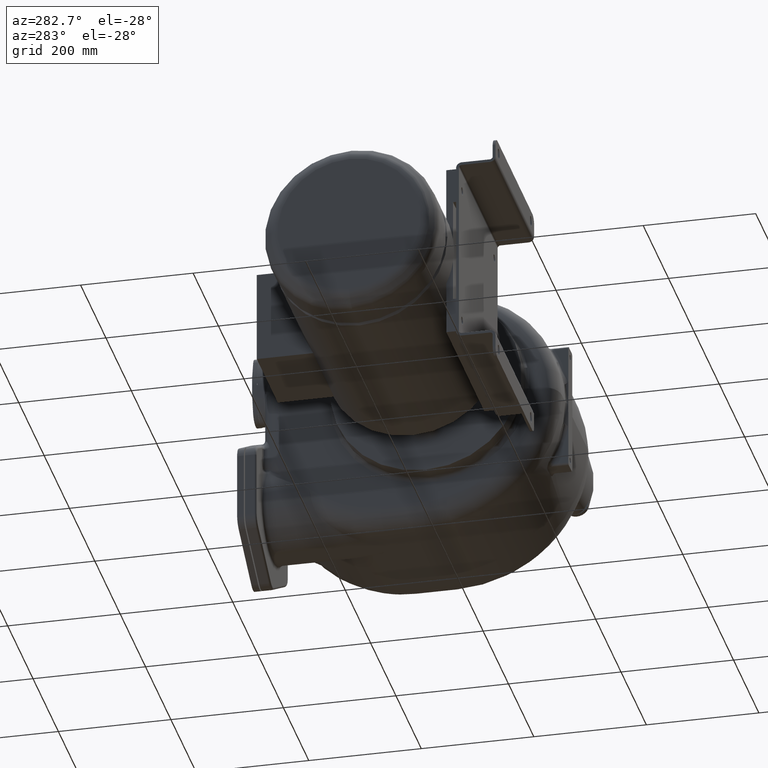
[diagram: clean part render]
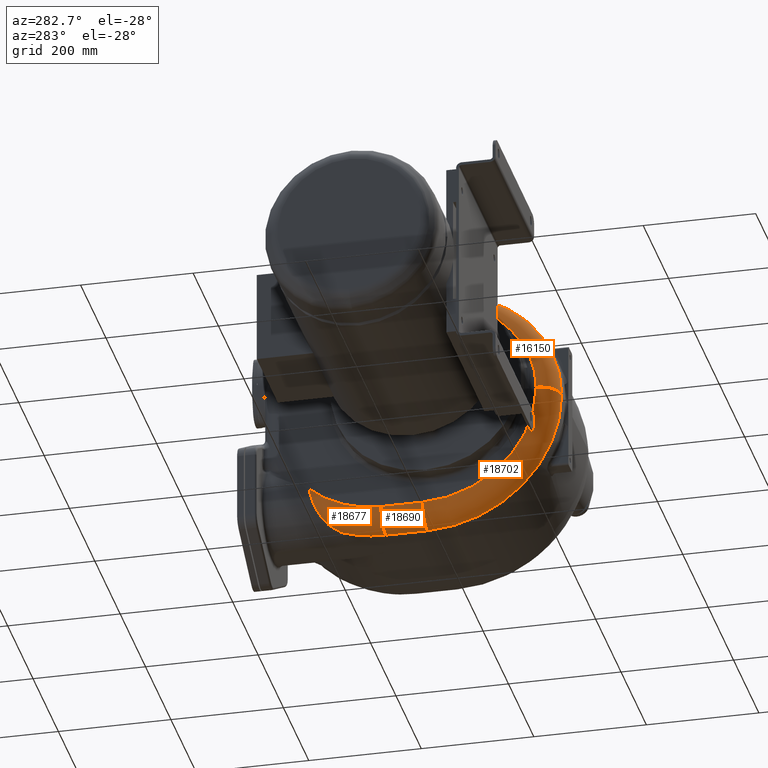
[diagram: same view with one multi-face feature highlighted, each face labeled with its STEP entity id]
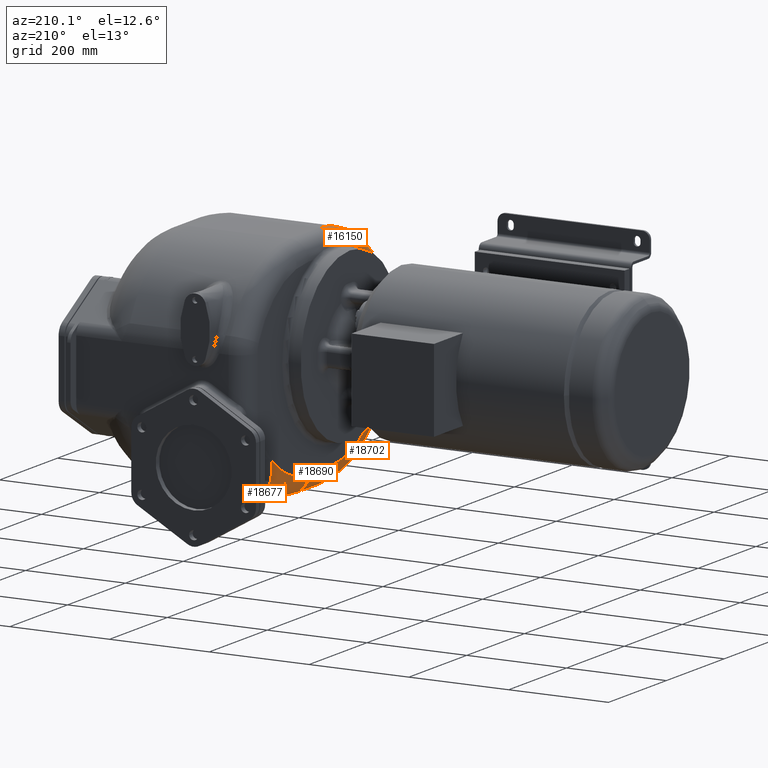
[diagram: same view with one multi-face feature highlighted, each face labeled with its STEP entity id]
A machine part, auxiliary view. The highlighted faces form ONE feature: a constant-radius fillet chain: 4 tangent blend faces with common blend radius 37 mm. The faces share edges in the B-rep.
A second angle (auxiliary view) of the same feature is appended — it is thin or edge-on in the first view.
Their STEP definitions:
[1] entity #18702 (Torus):
#1729=CARTESIAN_POINT('',(-5.E1,4.1E1,-1.3E1));
#1730=DIRECTION('',(0.E0,0.E0,1.E0));
#1731=DIRECTION('',(-1.E0,0.E0,0.E0));
#1732=AXIS2_PLACEMENT_3D('',#1729,#1730,#1731);
#2246=CARTESIAN_POINT('',(-5.E1,2.43E2,-1.3E1));
#2247=DIRECTION('',(-1.E0,0.E0,0.E0));
#2248=DIRECTION('',(0.E0,0.E0,-1.E0));
#2249=AXIS2_PLACEMENT_3D('',#2246,#2247,#2248);
#3754=CARTESIAN_POINT('',(-8.7E1,2.43E2,-1.3E1));
#3755=DIRECTION('',(-1.E0,0.E0,0.E0));
#3756=DIRECTION('',(0.E0,0.E0,-1.E0));
#3757=AXIS2_PLACEMENT_3D('',#3754,#3755,#3756);
#4957=CARTESIAN_POINT('',(-5.E1,2.43E2,-2.15E2));
#4958=DIRECTION('',(0.E0,-1.E0,0.E0));
#4959=DIRECTION('',(-1.E0,0.E0,0.E0));
#4960=AXIS2_PLACEMENT_3D('',#4957,#4958,#4959);
#12469=CARTESIAN_POINT('',(-5.E1,2.43E2,-2.52E2));
#12471=VERTEX_POINT('',#12469);
#12554=CARTESIAN_POINT('',(-8.7E1,2.43E2,-2.15E2));
#12556=VERTEX_POINT('',#12554);
#12559=CARTESIAN_POINT('',(-8.7E1,4.1E1,-1.3E1));
#12560=VERTEX_POINT('',#12559);
#12561=CARTESIAN_POINT('',(-5.E1,4.E0,-1.3E1));
#12562=VERTEX_POINT('',#12561);
#18691=CARTESIAN_POINT('',(-5.E1,2.43E2,-1.3E1));
#18692=DIRECTION('',(-1.E0,0.E0,0.E0));
#18693=DIRECTION('',(0.E0,4.993997218296E-3,-9.999875299181E-1));
#18694=AXIS2_PLACEMENT_3D('',#18691,#18692,#18693);
#18695=TOROIDAL_SURFACE('',#18694,2.02E2,3.7E1);
#18696=ORIENTED_EDGE('',*,*,#17853,.T.);
#18697=ORIENTED_EDGE('',*,*,#16144,.T.);
#18698=ORIENTED_EDGE('',*,*,#16526,.F.);
#18699=ORIENTED_EDGE('',*,*,#18684,.F.);
#18700=EDGE_LOOP('',(#18696,#18697,#18698,#18699));
#18701=FACE_OUTER_BOUND('',#18700,.F.);
#18702=ADVANCED_FACE('',(#18701),#18695,.T.);
#1733=CIRCLE('',#1732,3.7E1);
#2250=CIRCLE('',#2249,2.39E2);
#3758=CIRCLE('',#3757,2.02E2);
#4961=CIRCLE('',#4960,3.7E1);
#16144=EDGE_CURVE('',#12560,#12562,#1733,.T.);
#16526=EDGE_CURVE('',#12471,#12562,#2250,.T.);
#17853=EDGE_CURVE('',#12556,#12560,#3758,.T.);
#18684=EDGE_CURVE('',#12556,#12471,#4961,.T.);
[2] entity #18690 (Cylinder):
#3759=DIRECTION('',(0.E0,-1.E0,0.E0));
#3760=VECTOR('',#3759,7.4E1);
#3761=CARTESIAN_POINT('',(-8.7E1,3.17E2,-2.15E2));
#3762=LINE('',#3761,#3760);
#4842=DIRECTION('',(0.E0,-1.E0,0.E0));
#4843=VECTOR('',#4842,7.399999999980E1);
#4844=CARTESIAN_POINT('',(-5.E1,3.169999999998E2,-2.52E2));
#4845=LINE('',#4844,#4843);
#4952=CARTESIAN_POINT('',(-5.E1,3.17E2,-2.15E2));
#4953=DIRECTION('',(0.E0,-1.E0,0.E0));
#4954=DIRECTION('',(-1.E0,0.E0,0.E0));
#4955=AXIS2_PLACEMENT_3D('',#4952,#4953,#4954);
#4957=CARTESIAN_POINT('',(-5.E1,2.43E2,-2.15E2));
#4958=DIRECTION('',(0.E0,-1.E0,0.E0));
#4959=DIRECTION('',(-1.E0,0.E0,0.E0));
#4960=AXIS2_PLACEMENT_3D('',#4957,#4958,#4959);
#12469=CARTESIAN_POINT('',(-5.E1,2.43E2,-2.52E2));
#12471=VERTEX_POINT('',#12469);
#12553=CARTESIAN_POINT('',(-8.7E1,3.17E2,-2.15E2));
#12554=CARTESIAN_POINT('',(-8.7E1,2.43E2,-2.15E2));
#12555=VERTEX_POINT('',#12553);
#12556=VERTEX_POINT('',#12554);
#12557=CARTESIAN_POINT('',(-5.E1,3.169999999998E2,-2.52E2));
#12558=VERTEX_POINT('',#12557);
#18678=CARTESIAN_POINT('',(-5.E1,3.181935702965E2,-2.15E2));
#18679=DIRECTION('',(0.E0,-1.E0,0.E0));
#18680=DIRECTION('',(-1.E0,0.E0,0.E0));
#18681=AXIS2_PLACEMENT_3D('',#18678,#18679,#18680);
#18682=CYLINDRICAL_SURFACE('',#18681,3.7E1);
#18683=ORIENTED_EDGE('',*,*,#17855,.T.);
#18685=ORIENTED_EDGE('',*,*,#18684,.T.);
#18686=ORIENTED_EDGE('',*,*,#18527,.F.);
#18687=ORIENTED_EDGE('',*,*,#18672,.F.);
#18688=EDGE_LOOP('',(#18683,#18685,#18686,#18687));
#18689=FACE_OUTER_BOUND('',#18688,.F.);
#18690=ADVANCED_FACE('',(#18689),#18682,.T.);
#4956=CIRCLE('',#4955,3.7E1);
#4961=CIRCLE('',#4960,3.7E1);
#17855=EDGE_CURVE('',#12555,#12556,#3762,.T.);
#18527=EDGE_CURVE('',#12558,#12471,#4845,.T.);
#18672=EDGE_CURVE('',#12555,#12558,#4956,.T.);
#18684=EDGE_CURVE('',#12556,#12471,#4961,.T.);
[3] entity #18677 (Torus):
#3763=CARTESIAN_POINT('',(-8.7E1,3.17E2,-2.6E1));
#3764=DIRECTION('',(-1.E0,0.E0,0.E0));
#3765=DIRECTION('',(0.E0,6.775794498383E-1,-7.354495830150E-1));
#3766=AXIS2_PLACEMENT_3D('',#3763,#3764,#3765);
#4879=CARTESIAN_POINT('',(-5.E1,3.17E2,-2.6E1));
#4880=DIRECTION('',(-1.E0,0.E0,0.E0));
#4881=DIRECTION('',(0.E0,3.433159695690E-1,-9.392199662693E-1));
#4882=AXIS2_PLACEMENT_3D('',#4879,#4880,#4881);
#4889=CARTESIAN_POINT('',(-4.999999999910E1,3.945894005768E2,
-2.382636889998E2));
#4890=CARTESIAN_POINT('',(-5.027685992945E1,3.951400083028E2,
-2.380624153406E2));
#4891=CARTESIAN_POINT('',(-5.083384238626E1,3.962284243100E2,
-2.376531319116E2));
#4892=CARTESIAN_POINT('',(-5.167637724071E1,3.978226223148E2,
-2.370188515176E2));
#4893=CARTESIAN_POINT('',(-5.252579099511E1,3.993793261340E2,
-2.363641269776E2));
#4894=CARTESIAN_POINT('',(-5.338107143585E1,4.008992932899E2,
-2.356887773350E2));
#4895=CARTESIAN_POINT('',(-5.424157438855E1,4.023832881094E2,
-2.349926397441E2));
#4896=CARTESIAN_POINT('',(-5.510638881010E1,4.038321688932E2,
-2.342755146343E2));
#4897=CARTESIAN_POINT('',(-5.597464543986E1,4.052468797074E2,
-2.335371697043E2));
#4898=CARTESIAN_POINT('',(-5.684566768742E1,4.066284702221E2,
-2.327772839837E2));
#4899=CARTESIAN_POINT('',(-5.771887432465E1,4.079779946048E2,
-2.319954833894E2));
#4900=CARTESIAN_POINT('',(-5.859355869258E1,4.092961377722E2,
-2.311915534010E2));
#4901=CARTESIAN_POINT('',(-5.946887275353E1,4.105833680458E2,
-2.303654082543E2));
#4902=CARTESIAN_POINT('',(-6.034382477561E1,4.118402533056E2,
-2.295169762838E2));
#4903=CARTESIAN_POINT('',(-6.121763256894E1,4.130674884952E2,
-2.286460801019E2));
#4904=CARTESIAN_POINT('',(-6.208959340050E1,4.142657980127E2,
-2.277524933838E2));
#4905=CARTESIAN_POINT('',(-6.295898196179E1,4.154357665269E2,
-2.268360536629E2));
#4906=CARTESIAN_POINT('',(-6.382498485600E1,4.165777958499E2,
-2.258967226780E2));
#4907=CARTESIAN_POINT('',(-6.468668097962E1,4.176924004405E2,
-2.249344711080E2));
#4908=CARTESIAN_POINT('',(-6.554327932774E1,4.187801170204E2,
-2.239492157422E2));
#4909=CARTESIAN_POINT('',(-6.639403708404E1,4.198415028590E2,
-2.229408404259E2));
#4910=CARTESIAN_POINT('',(-6.723819572201E1,4.208770012088E2,
-2.219092967295E2));
#4911=CARTESIAN_POINT('',(-6.807493517478E1,4.218870140223E2,
-2.208546023264E2));
#4912=CARTESIAN_POINT('',(-6.890339299340E1,4.228719902731E2,
-2.197767950559E2));
#4913=CARTESIAN_POINT('',(-6.972273273079E1,4.238322907788E2,
-2.186759664688E2));
#4914=CARTESIAN_POINT('',(-7.053214865567E1,4.247682955224E2,
-2.175521999149E2));
#4915=CARTESIAN_POINT('',(-7.133098930973E1,4.256805032043E2,
-2.164054051835E2));
#4916=CARTESIAN_POINT('',(-7.211853719520E1,4.265694628748E2,
-2.152355032125E2));
#4917=CARTESIAN_POINT('',(-7.289396958078E1,4.274354853762E2,
-2.140426496841E2));
#4918=CARTESIAN_POINT('',(-7.365647536435E1,4.282788821123E2,
-2.128270189874E2));
#4919=CARTESIAN_POINT('',(-7.440526330406E1,4.290999586301E2,
-2.115887961857E2));
#4920=CARTESIAN_POINT('',(-7.513952280248E1,4.298990896339E2,
-2.103281737497E2));
#4921=CARTESIAN_POINT('',(-7.585854791663E1,4.306766567855E2,
-2.090452529387E2));
#4922=CARTESIAN_POINT('',(-7.656163644669E1,4.314330231115E2,
-2.077401493984E2));
#4923=CARTESIAN_POINT('',(-7.724807949736E1,4.321685852172E2,
-2.064129750539E2));
#4924=CARTESIAN_POINT('',(-7.791714396805E1,4.328837085376E2,
-2.050639057928E2));
#4925=CARTESIAN_POINT('',(-7.856810584862E1,4.335787043278E2,
-2.036931625029E2));
#4926=CARTESIAN_POINT('',(-7.920026019218E1,4.342538779291E2,
-2.023009632893E2));
#4927=CARTESIAN_POINT('',(-7.981287813198E1,4.349095884503E2,
-2.008875494231E2));
#4928=CARTESIAN_POINT('',(-8.040526873665E1,4.355461711795E2,
-1.994531439534E2));
#4929=CARTESIAN_POINT('',(-8.097675417773E1,4.361639494712E2,
-1.979979735371E2));
#4930=CARTESIAN_POINT('',(-8.152666731229E1,4.367632308082E2,
-1.965222714176E2));
#4931=CARTESIAN_POINT('',(-8.205431909439E1,4.373443847101E2,
-1.950262884976E2));
#4932=CARTESIAN_POINT('',(-8.255904536651E1,4.379077247115E2,
-1.935102883061E2));
#4933=CARTESIAN_POINT('',(-8.304018626335E1,4.384535606116E2,
-1.919745462740E2));
#4934=CARTESIAN_POINT('',(-8.349708976927E1,4.389821916083E2,
-1.904193446341E2));
#4935=CARTESIAN_POINT('',(-8.392908660396E1,4.394939776645E2,
-1.888449882194E2));
#4936=CARTESIAN_POINT('',(-8.433552973754E1,4.399892156932E2,
-1.872517982092E2));
#4937=CARTESIAN_POINT('',(-8.471577474122E1,4.404682039268E2,
-1.856401102386E2));
#4938=CARTESIAN_POINT('',(-8.506917990558E1,4.409312584281E2,
-1.840102624910E2));
#4939=CARTESIAN_POINT('',(-8.539509271845E1,4.413787029394E2,
-1.823626624931E2));
#4940=CARTESIAN_POINT('',(-8.569287279245E1,4.418108167117E2,
-1.806977624872E2));
#4941=CARTESIAN_POINT('',(-8.596189017990E1,4.422278824933E2,
-1.790160191409E2));
#4942=CARTESIAN_POINT('',(-8.620151371646E1,4.426302488831E2,
-1.773179155655E2));
#4943=CARTESIAN_POINT('',(-8.641114692645E1,4.430182592161E2,
-1.756038091304E2));
#4944=CARTESIAN_POINT('',(-8.659019377894E1,4.433922464276E2,
-1.738740710138E2));
#4945=CARTESIAN_POINT('',(-8.673805738483E1,4.437525225214E2,
-1.721290971007E2));
#4946=CARTESIAN_POINT('',(-8.685414222542E1,4.440994736338E2,
-1.703692447725E2));
#4947=CARTESIAN_POINT('',(-8.693785100472E1,4.444335035464E2,
-1.685946666577E2));
#4948=CARTESIAN_POINT('',(-8.698859434296E1,4.447550486223E2,
-1.668056725347E2));
#4949=CARTESIAN_POINT('',(-8.699997756853E1,4.449612996763E2,
-1.656033288073E2));
#4950=CARTESIAN_POINT('',(-8.700000000053E1,4.450624915602E2,
-1.649999875494E2));
#4952=CARTESIAN_POINT('',(-5.E1,3.17E2,-2.15E2));
#4953=DIRECTION('',(0.E0,-1.E0,0.E0));
#4954=DIRECTION('',(-1.E0,0.E0,0.E0));
#4955=AXIS2_PLACEMENT_3D('',#4952,#4953,#4954);
#12553=CARTESIAN_POINT('',(-8.7E1,3.17E2,-2.15E2));
#12555=VERTEX_POINT('',#12553);
#12557=CARTESIAN_POINT('',(-5.E1,3.169999999998E2,-2.52E2));
#12558=VERTEX_POINT('',#12557);
#12585=VERTEX_POINT('',#4889);
#12586=VERTEX_POINT('',#4950);
#18665=CARTESIAN_POINT('',(-5.E1,3.17E2,-2.6E1));
#18666=DIRECTION('',(-1.E0,0.E0,0.E0));
#18667=DIRECTION('',(0.E0,9.142235299436E-1,-4.052102383917E-1));
#18668=AXIS2_PLACEMENT_3D('',#18665,#18666,#18667);
#18669=TOROIDAL_SURFACE('',#18668,1.89E2,3.7E1);
#18670=ORIENTED_EDGE('',*,*,#18659,.T.);
#18671=ORIENTED_EDGE('',*,*,#17857,.T.);
#18673=ORIENTED_EDGE('',*,*,#18672,.T.);
#18674=ORIENTED_EDGE('',*,*,#18543,.F.);
#18675=EDGE_LOOP('',(#18670,#18671,#18673,#18674));
#18676=FACE_OUTER_BOUND('',#18675,.F.);
#18677=ADVANCED_FACE('',(#18676),#18669,.T.);
#3767=CIRCLE('',#3766,1.89E2);
#4883=CIRCLE('',#4882,2.26E2);
#4951=B_SPLINE_CURVE_WITH_KNOTS('',3,(#4889,#4890,#4891,#4892,#4893,#4894,#4895,
#4896,#4897,#4898,#4899,#4900,#4901,#4902,#4903,#4904,#4905,#4906,#4907,#4908,
#4909,#4910,#4911,#4912,#4913,#4914,#4915,#4916,#4917,#4918,#4919,#4920,#4921,
#4922,#4923,#4924,#4925,#4926,#4927,#4928,#4929,#4930,#4931,#4932,#4933,#4934,
#4935,#4936,#4937,#4938,#4939,#4940,#4941,#4942,#4943,#4944,#4945,#4946,#4947,
#4948,#4949,#4950),.UNSPECIFIED.,.F.,.F.,(4,1,1,1,1,1,1,1,1,1,1,1,1,1,1,1,1,1,1,
1,1,1,1,1,1,1,1,1,1,1,1,1,1,1,1,1,1,1,1,1,1,1,1,1,1,1,1,1,1,1,1,1,1,1,1,1,1,1,1,
4),(0.E0,1.694915254237E-2,3.389830508475E-2,5.084745762712E-2,
6.779661016949E-2,8.474576271186E-2,1.016949152542E-1,1.186440677966E-1,
1.355932203390E-1,1.525423728814E-1,1.694915254237E-1,1.864406779661E-1,
2.033898305085E-1,2.203389830508E-1,2.372881355932E-1,2.542372881356E-1,
2.711864406780E-1,2.881355932203E-1,3.050847457627E-1,3.220338983051E-1,
3.389830508475E-1,3.559322033898E-1,3.728813559322E-1,3.898305084746E-1,
4.067796610169E-1,4.237288135593E-1,4.406779661017E-1,4.576271186441E-1,
4.745762711864E-1,4.915254237288E-1,5.084745762712E-1,5.254237288136E-1,
5.423728813559E-1,5.593220338983E-1,5.762711864407E-1,5.932203389831E-1,
6.101694915254E-1,6.271186440678E-1,6.440677966102E-1,6.610169491525E-1,
6.779661016949E-1,6.949152542373E-1,7.118644067797E-1,7.288135593220E-1,
7.457627118644E-1,7.627118644068E-1,7.796610169492E-1,7.966101694915E-1,
8.135593220339E-1,8.305084745763E-1,8.474576271186E-1,8.644067796610E-1,
8.813559322034E-1,8.983050847458E-1,9.152542372881E-1,9.322033898305E-1,
9.491525423729E-1,9.661016949153E-1,9.830508474576E-1,1.E0),.UNSPECIFIED.);
#4956=CIRCLE('',#4955,3.7E1);
#17857=EDGE_CURVE('',#12586,#12555,#3767,.T.);
#18543=EDGE_CURVE('',#12585,#12558,#4883,.T.);
#18659=EDGE_CURVE('',#12585,#12586,#4951,.T.);
#18672=EDGE_CURVE('',#12555,#12558,#4956,.T.);
[4] entity #16150 (Torus):
#1649=CARTESIAN_POINT('',(-5.E1,2.17E2,1.63E2));
#1650=DIRECTION('',(0.E0,1.E0,0.E0));
#1651=DIRECTION('',(-9.464774598230E-1,0.E0,3.227699150276E-1));
#1652=AXIS2_PLACEMENT_3D('',#1649,#1650,#1651);
#1674=CARTESIAN_POINT('',(-8.699999958108E1,8.563733848388E1,1.041317387199E2));
#1675=CARTESIAN_POINT('',(-8.699999934017E1,8.624084388573E1,1.049370104370E2));
#1676=CARTESIAN_POINT('',(-8.699941025337E1,8.746198160227E1,1.065372079002E2));
#1677=CARTESIAN_POINT('',(-8.699673788883E1,8.933337149020E1,1.089064485714E2));
#1678=CARTESIAN_POINT('',(-8.699227722773E1,9.124498621170E1,1.112435399105E2));
#1679=CARTESIAN_POINT('',(-8.698602673304E1,9.319600726775E1,1.135478077526E2));
#1680=CARTESIAN_POINT('',(-8.697798710654E1,9.518594975241E1,1.158185936660E2));
#1681=CARTESIAN_POINT('',(-8.696815896360E1,9.721422272607E1,1.180552998237E2));
#1682=CARTESIAN_POINT('',(-8.695654463177E1,9.928026177746E1,1.202573145110E2));
#1683=CARTESIAN_POINT('',(-8.694314809083E1,1.013834931331E2,1.224240315435E2));
#1684=CARTESIAN_POINT('',(-8.692797555346E1,1.035233333660E2,1.245548343989E2));
#1685=CARTESIAN_POINT('',(-8.691103552025E1,1.056991923514E2,1.266491088851E2));
#1686=CARTESIAN_POINT('',(-8.689233988911E1,1.079104898835E2,1.287062425014E2));
#1687=CARTESIAN_POINT('',(-8.687189966882E1,1.101565304710E2,1.307256030773E2));
#1688=CARTESIAN_POINT('',(-8.684972667835E1,1.124365896407E2,1.327065672936E2));
#1689=CARTESIAN_POINT('',(-8.682583562149E1,1.147499430782E2,1.346485154079E2));
#1690=CARTESIAN_POINT('',(-8.680024406138E1,1.170958727715E2,1.365508427085E2));
#1691=CARTESIAN_POINT('',(-8.677297258502E1,1.194736603184E2,1.384129545758E2));
#1692=CARTESIAN_POINT('',(-8.674404681464E1,1.218825838359E2,1.402342501702E2));
#1693=CARTESIAN_POINT('',(-8.671348865832E1,1.243220755221E2,1.420143048555E2));
#1694=CARTESIAN_POINT('',(-8.668131626494E1,1.267915646877E2,1.437527388674E2));
#1695=CARTESIAN_POINT('',(-8.664755184951E1,1.292904414436E2,1.454491204176E2));
#1696=CARTESIAN_POINT('',(-8.661222381252E1,1.318178436592E2,1.471028513137E2));
#1697=CARTESIAN_POINT('',(-8.657536433108E1,1.343728951254E2,1.487133450919E2));
#1698=CARTESIAN_POINT('',(-8.653700795661E1,1.369548934115E2,1.502801305271E2));
#1699=CARTESIAN_POINT('',(-8.649718163923E1,1.395632129075E2,1.518028509257E2));
#1700=CARTESIAN_POINT('',(-8.645591440279E1,1.421971738888E2,1.532811185315E2));
#1701=CARTESIAN_POINT('',(-8.641324285156E1,1.448558551859E2,1.547144108972E2));
#1702=CARTESIAN_POINT('',(-8.636920745581E1,1.475383167662E2,1.561022180074E2));
#1703=CARTESIAN_POINT('',(-8.632384946323E1,1.502438940134E2,1.574441755600E2));
#1704=CARTESIAN_POINT('',(-8.627720173590E1,1.529719869868E2,1.587400029982E2));
#1705=CARTESIAN_POINT('',(-8.622930180528E1,1.557218016857E2,1.599893288649E2));
#1706=CARTESIAN_POINT('',(-8.618019401814E1,1.584923782601E2,1.611917150339E2));
#1707=CARTESIAN_POINT('',(-8.612992526339E1,1.612828996074E2,1.623467941455E2));
#1708=CARTESIAN_POINT('',(-8.607854008485E1,1.640926641023E2,1.634542681232E2));
#1709=CARTESIAN_POINT('',(-8.602607922151E1,1.669208694749E2,1.645138395269E2));
#1710=CARTESIAN_POINT('',(-8.597258990251E1,1.697666383885E2,1.655251805700E2));
#1711=CARTESIAN_POINT('',(-8.591812351511E1,1.726291089725E2,1.664879748785E2));
#1712=CARTESIAN_POINT('',(-8.586273340524E1,1.755073981032E2,1.674019178689E2));
#1713=CARTESIAN_POINT('',(-8.580646525553E1,1.784006680833E2,1.682667699350E2));
#1714=CARTESIAN_POINT('',(-8.574936902641E1,1.813081147745E2,1.690822981921E2));
#1715=CARTESIAN_POINT('',(-8.569150003873E1,1.842289281531E2,1.698482649227E2));
#1716=CARTESIAN_POINT('',(-8.563291210995E1,1.871622909159E2,1.705644543537E2));
#1717=CARTESIAN_POINT('',(-8.557365548695E1,1.901073504839E2,1.712306745572E2));
#1718=CARTESIAN_POINT('',(-8.551378597597E1,1.930632583173E2,1.718467317187E2));
#1719=CARTESIAN_POINT('',(-8.545336387770E1,1.960291624431E2,1.724124346188E2));
#1720=CARTESIAN_POINT('',(-8.539244185735E1,1.990042245861E2,1.729276371791E2));
#1721=CARTESIAN_POINT('',(-8.533107584718E1,2.019876090328E2,1.733921973994E2));
#1722=CARTESIAN_POINT('',(-8.526932759807E1,2.049784806044E2,1.738059701265E2));
#1723=CARTESIAN_POINT('',(-8.520725390569E1,2.079759755306E2,1.741688401193E2));
#1724=CARTESIAN_POINT('',(-8.514491353671E1,2.109792286975E2,1.744807024840E2));
#1725=CARTESIAN_POINT('',(-8.508236961662E1,2.139873733850E2,1.747414541381E2));
#1726=CARTESIAN_POINT('',(-8.504057658996E1,2.159954517022E2,1.748811705855E2));
#1727=CARTESIAN_POINT('',(-8.501966646758E1,2.17E2,1.749424870109E2));
#1729=CARTESIAN_POINT('',(-5.E1,4.1E1,-1.3E1));
#1730=DIRECTION('',(0.E0,0.E0,1.E0));
#1731=DIRECTION('',(-1.E0,0.E0,0.E0));
#1732=AXIS2_PLACEMENT_3D('',#1729,#1730,#1731);
#1856=CARTESIAN_POINT('',(-5.E1,2.17E2,-1.3E1));
#1857=DIRECTION('',(-1.E0,0.E0,0.E0));
#1858=DIRECTION('',(0.E0,-1.E0,0.E0));
#1859=AXIS2_PLACEMENT_3D('',#1856,#1857,#1858);
#3749=CARTESIAN_POINT('',(-8.7E1,2.17E2,-1.3E1));
#3750=DIRECTION('',(-1.E0,0.E0,0.E0));
#3751=DIRECTION('',(0.E0,-1.E0,0.E0));
#3752=AXIS2_PLACEMENT_3D('',#3749,#3750,#3751);
#12513=CARTESIAN_POINT('',(-5.E1,2.17E2,2.E2));
#12515=VERTEX_POINT('',#12513);
#12559=CARTESIAN_POINT('',(-8.7E1,4.1E1,-1.3E1));
#12560=VERTEX_POINT('',#12559);
#12561=CARTESIAN_POINT('',(-5.E1,4.E0,-1.3E1));
#12562=VERTEX_POINT('',#12561);
#12612=VERTEX_POINT('',#1674);
#12613=VERTEX_POINT('',#1727);
#16135=CARTESIAN_POINT('',(-5.E1,2.17E2,-1.3E1));
#16136=DIRECTION('',(-1.E0,0.E0,0.E0));
#16137=DIRECTION('',(0.E0,-9.999842997826E-1,-5.603587089385E-3));
#16138=AXIS2_PLACEMENT_3D('',#16135,#16136,#16137);
#16139=TOROIDAL_SURFACE('',#16138,1.76E2,3.7E1);
#16140=ORIENTED_EDGE('',*,*,#16127,.T.);
#16141=ORIENTED_EDGE('',*,*,#15993,.T.);
#16143=ORIENTED_EDGE('',*,*,#16142,.F.);
#16145=ORIENTED_EDGE('',*,*,#16144,.F.);
#16147=ORIENTED_EDGE('',*,*,#16146,.T.);
#16148=EDGE_LOOP('',(#16140,#16141,#16143,#16145,#16147));
#16149=FACE_OUTER_BOUND('',#16148,.F.);
#16150=ADVANCED_FACE('',(#16149),#16139,.T.);
#1653=CIRCLE('',#1652,3.7E1);
#1728=B_SPLINE_CURVE_WITH_KNOTS('',3,(#1674,#1675,#1676,#1677,#1678,#1679,#1680,
#1681,#1682,#1683,#1684,#1685,#1686,#1687,#1688,#1689,#1690,#1691,#1692,#1693,
#1694,#1695,#1696,#1697,#1698,#1699,#1700,#1701,#1702,#1703,#1704,#1705,#1706,
#1707,#1708,#1709,#1710,#1711,#1712,#1713,#1714,#1715,#1716,#1717,#1718,#1719,
#1720,#1721,#1722,#1723,#1724,#1725,#1726,#1727),.UNSPECIFIED.,.F.,.F.,(4,1,1,1,
1,1,1,1,1,1,1,1,1,1,1,1,1,1,1,1,1,1,1,1,1,1,1,1,1,1,1,1,1,1,1,1,1,1,1,1,1,1,1,1,
1,1,1,1,1,1,1,4),(0.E0,1.960784313725E-2,3.921568627451E-2,5.882352941176E-2,
7.843137254902E-2,9.803921568627E-2,1.176470588235E-1,1.372549019608E-1,
1.568627450980E-1,1.764705882353E-1,1.960784313725E-1,2.156862745098E-1,
2.352941176471E-1,2.549019607843E-1,2.745098039216E-1,2.941176470588E-1,
3.137254901961E-1,3.333333333333E-1,3.529411764706E-1,3.725490196078E-1,
3.921568627451E-1,4.117647058824E-1,4.313725490196E-1,4.509803921569E-1,
4.705882352941E-1,4.901960784314E-1,5.098039215686E-1,5.294117647059E-1,
5.490196078431E-1,5.686274509804E-1,5.882352941176E-1,6.078431372549E-1,
6.274509803922E-1,6.470588235294E-1,6.666666666667E-1,6.862745098039E-1,
7.058823529412E-1,7.254901960784E-1,7.450980392157E-1,7.647058823529E-1,
7.843137254902E-1,8.039215686275E-1,8.235294117647E-1,8.431372549020E-1,
8.627450980392E-1,8.823529411765E-1,9.019607843137E-1,9.215686274510E-1,
9.411764705882E-1,9.607843137255E-1,9.803921568627E-1,1.E0),.UNSPECIFIED.);
#1733=CIRCLE('',#1732,3.7E1);
#1860=CIRCLE('',#1859,2.13E2);
#3753=CIRCLE('',#3752,1.76E2);
#15993=EDGE_CURVE('',#12613,#12515,#1653,.T.);
#16127=EDGE_CURVE('',#12612,#12613,#1728,.T.);
#16142=EDGE_CURVE('',#12562,#12515,#1860,.T.);
#16144=EDGE_CURVE('',#12560,#12562,#1733,.T.);
#16146=EDGE_CURVE('',#12560,#12612,#3753,.T.);